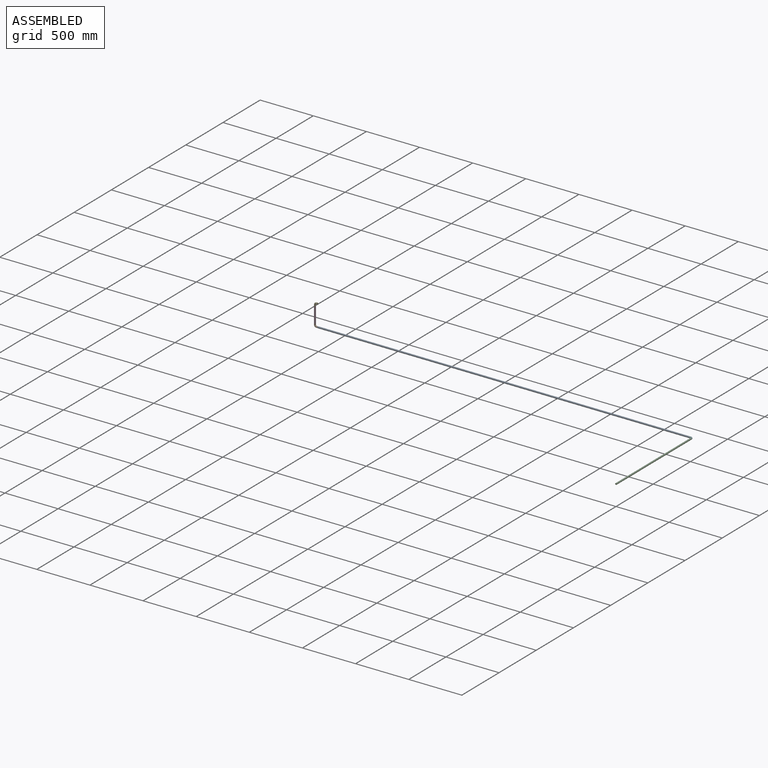
[diagram: assembled view]
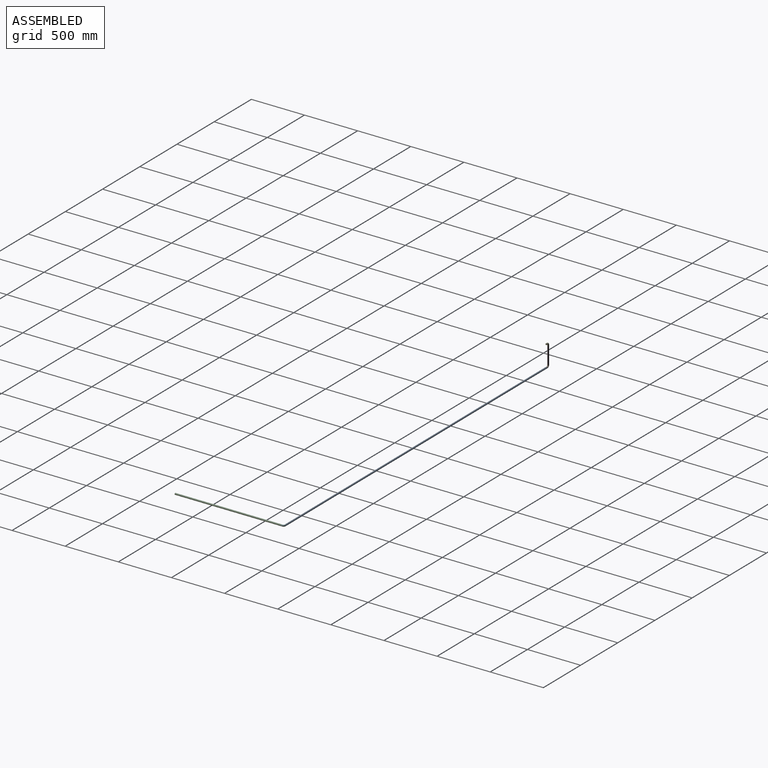
[diagram: assembled view, second angle]
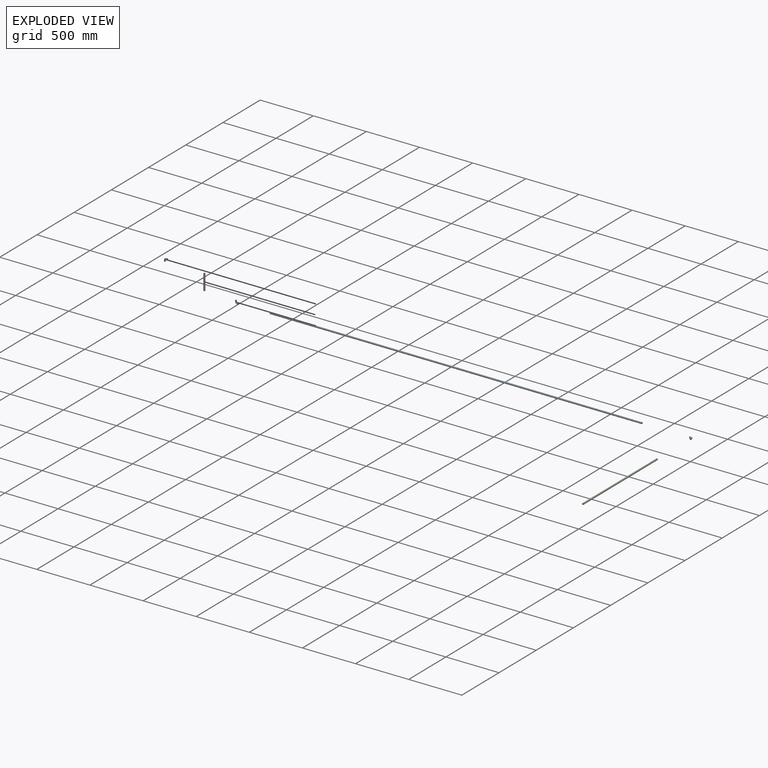
[diagram: exploded view]
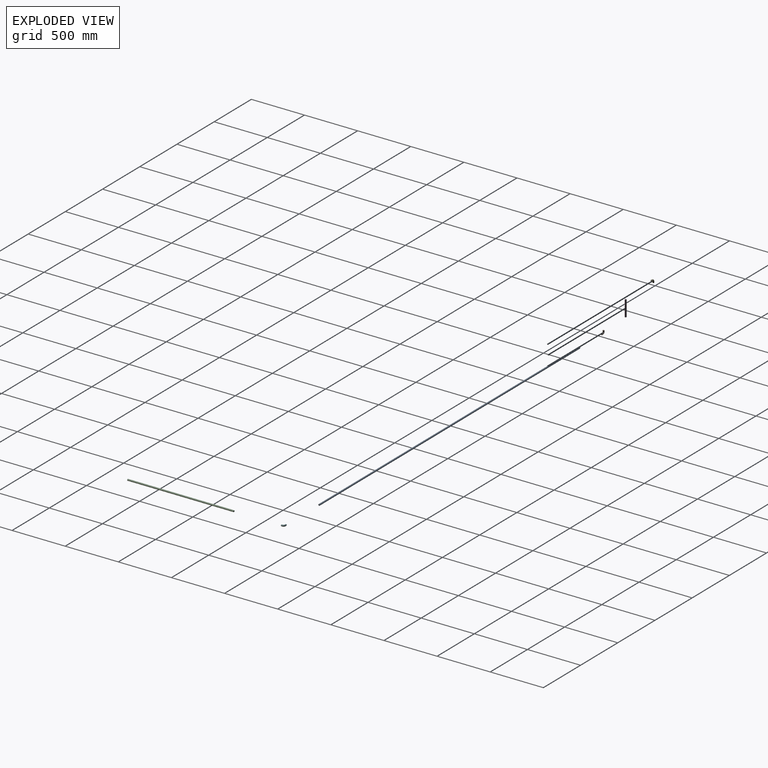
[diagram: exploded view, second angle]
ASSEMBLY  parts=6 mates=4
PART A: 3 faces, bbox 15x3500x15 mm
  f0: cylinder r=7.5mm len=3500mm, axis (0,1,0), area 164933.6mm2, adj f1,f2
  f1: plane 15x15mm, normal (0,-1,0), area 176.7mm2, adj f0
  f2: plane 15x15mm, normal (0,1,0), area 176.7mm2, adj f0
PART B: 5 faces, bbox 34.4x34.4x15 mm
  f0: plane 15x15mm, normal (0,-1,0), area 176.7mm2, adj f2
  f1: plane 15x15mm, normal (1,0,0), area 176.7mm2, adj f4
  f2: cylinder r=7.5mm len=15mm, axis (0,1,0), area 471.2mm2, adj f0,f3
  f3: torus R=15mm, axis (0,0,-1), area 1110.3mm2, adj f2,f4
  f4: cylinder r=7.5mm len=15mm, axis (1,0,0), area 471.2mm2, adj f1,f3
PART C: 3 faces, bbox 15x1000x15 mm
  f0: cylinder r=7.5mm len=1000mm, axis (0,1,0), area 47123.9mm2, adj f1,f2
  f1: plane 15x15mm, normal (0,-1,0), area 176.7mm2, adj f0
  f2: plane 15x15mm, normal (0,1,0), area 176.7mm2, adj f0
PART D: 3 faces, bbox 15x150x15 mm
  f0: cylinder r=7.5mm len=150mm, axis (0,1,0), area 7068.6mm2, adj f1,f2
  f1: plane 15x15mm, normal (0,-1,0), area 176.7mm2, adj f0
  f2: plane 15x15mm, normal (0,1,0), area 176.7mm2, adj f0
PART E: same geometry as B
PART F: same geometry as B
PLACE A rot(axis=(0,0,-1),90deg) t=(13317.77,4363.21,-1561.59)mm
PLACE B rot(axis=(-1,0,0),90deg) t=(9792.77,4249.64,-1500)mm
PLACE C t=(13329.2,4224.64,-1561.59)mm
PLACE D rot(axis=(0.58,-0.58,-0.58),120deg) t=(9829.36,4188.21,-1350)mm
PLACE E rot(axis=(1,0,0),90deg) t=(9792.77,4249.64,-1350)mm
PLACE F rot(axis=(0,0,-1),90deg) t=(13317.77,4249.64,-1525)mm
MATE fastened F.f4 <-> C.f0  axis (0,-1,0) through (13342.77,4224.64,-1525)mm
MATE fastened F.f2 <-> A.f0  axis (-1,0,0) through (13317.77,4249.64,-1525)mm
MATE fastened B.f4 <-> A.f0  axis (1,0,0) through (9817.77,4249.64,-1525)mm
MATE fastened E.f2 <-> D.f0  axis (0,0,-1) through (9792.77,4249.64,-1350)mm
